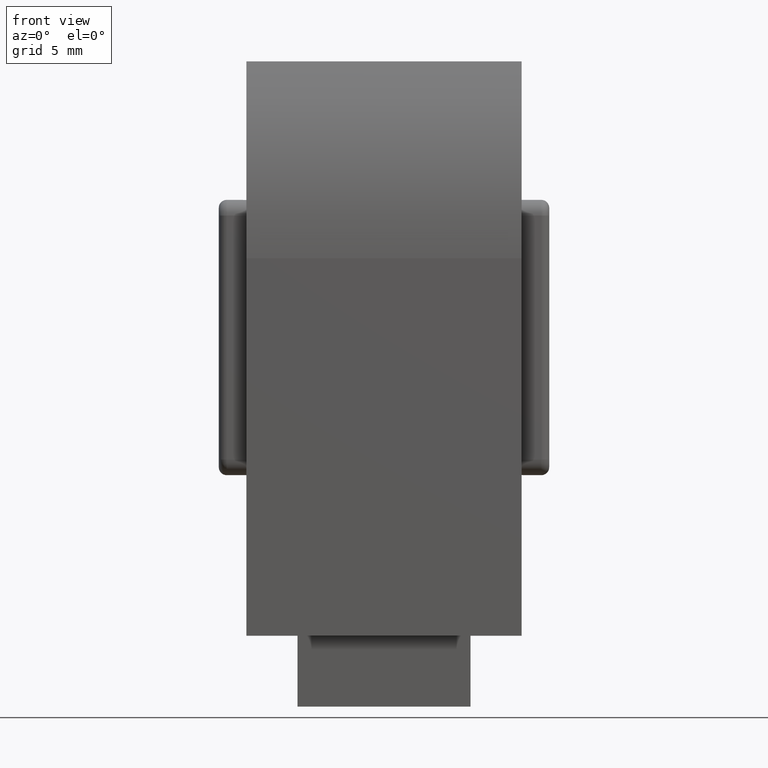
[diagram: clean part render]
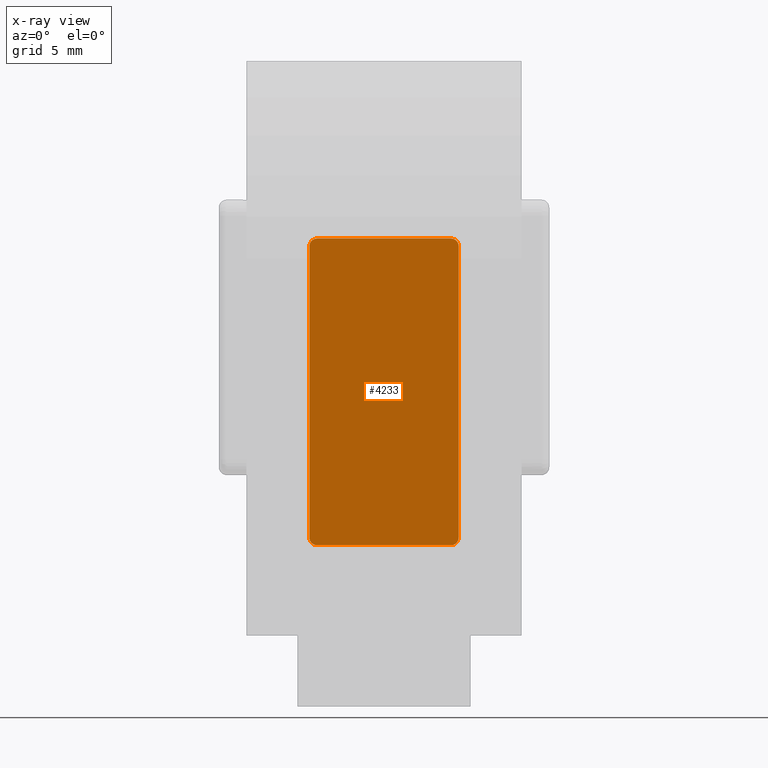
[diagram: x-ray — body ghosted, one internal face saturated and labeled with its STEP entity id]
A machine part, front view, then the same camera in x-ray: the body is ghosted and one INTERNAL B-rep face — a face not visible from any outside direction — is saturated and labeled: STEP entity #4233.
In plain terms, the highlighted planar face has unit normal (0, 1, 0).
Its self-contained STEP definition (entity closure, byte-faithful):
#492 = EDGE_CURVE ( 'NONE', #8392, #2623, #10461, .T. ) ;
#632 = CARTESIAN_POINT ( 'NONE',  ( 4.249999999999996400, -1.000000000000000000, -9.250000000000001800 ) ) ;
#671 = DIRECTION ( 'NONE',  ( 0.0000000000000000000, -0.0000000000000000000, 1.000000000000000000 ) ) ;
#781 = DIRECTION ( 'NONE',  ( 0.0000000000000000000, 0.0000000000000000000, -1.000000000000000000 ) ) ;
#791 = LINE ( 'NONE', #3850, #1812 ) ;
#896 = EDGE_CURVE ( 'NONE', #8370, #6532, #7158, .T. ) ;
#1049 = CARTESIAN_POINT ( 'NONE',  ( -4.249999999999994700, -1.000000000000000000, 9.749999999999998200 ) ) ;
#1142 = ORIENTED_EDGE ( 'NONE', *, *, #6099, .F. ) ;
#1208 = EDGE_CURVE ( 'NONE', #5836, #1214, #2405, .T. ) ;
#1214 = VERTEX_POINT ( 'NONE', #9729 ) ;
#1229 = ORIENTED_EDGE ( 'NONE', *, *, #9600, .F. ) ;
#1412 = DIRECTION ( 'NONE',  ( 0.0000000000000000000, 1.000000000000000000, 0.0000000000000000000 ) ) ;
#1420 = CARTESIAN_POINT ( 'NONE',  ( 4.749999999999997300, -1.000000000000000000, -9.249999999999998200 ) ) ;
#1812 = VECTOR ( 'NONE', #6168, 1000.000000000000000 ) ;
#1926 = CARTESIAN_POINT ( 'NONE',  ( 4.249999999999993800, -1.000000000000000000, -9.750000000000001800 ) ) ;
#2089 = AXIS2_PLACEMENT_3D ( 'NONE', #4807, #2336, #781 ) ;
#2287 = ORIENTED_EDGE ( 'NONE', *, *, #492, .F. ) ;
#2336 = DIRECTION ( 'NONE',  ( 0.0000000000000000000, 1.000000000000000000, -0.0000000000000000000 ) ) ;
#2405 = CIRCLE ( 'NONE', #2089, 0.5000000000000004400 ) ;
#2546 = CARTESIAN_POINT ( 'NONE',  ( -4.749999999999999100, -1.000000000000000000, 9.249999999999994700 ) ) ;
#2560 = ORIENTED_EDGE ( 'NONE', *, *, #10570, .F. ) ;
#2623 = VERTEX_POINT ( 'NONE', #1420 ) ;
#2780 = ORIENTED_EDGE ( 'NONE', *, *, #9199, .F. ) ;
#2858 = ORIENTED_EDGE ( 'NONE', *, *, #896, .F. ) ;
#3289 = CIRCLE ( 'NONE', #4516, 0.5000000000000004400 ) ;
#3451 = CARTESIAN_POINT ( 'NONE',  ( 4.749999999999999100, -1.000000000000000000, 9.249999999999994700 ) ) ;
#3456 = EDGE_LOOP ( 'NONE', ( #2780, #2287, #1142, #2858, #10506, #2560, #9347, #1229 ) ) ;
#3850 = CARTESIAN_POINT ( 'NONE',  ( -4.249999999999998200, -1.000000000000000000, -9.750000000000001800 ) ) ;
#4170 = DIRECTION ( 'NONE',  ( 0.0000000000000000000, 1.000000000000000000, 0.0000000000000000000 ) ) ;
#4209 = CARTESIAN_POINT ( 'NONE',  ( 4.249999999999996400, -1.000000000000000000, -9.250000000000001800 ) ) ;
#4230 = DIRECTION ( 'NONE',  ( 0.0000000000000000000, 0.0000000000000000000, 1.000000000000000000 ) ) ;
#4233 = ADVANCED_FACE ( 'NONE', ( #7552 ), #8103, .F. ) ;
#4367 = CARTESIAN_POINT ( 'NONE',  ( 4.249999999999994700, -1.000000000000000000, 9.749999999999998200 ) ) ;
#4464 = VECTOR ( 'NONE', #5830, 1000.000000000000000 ) ;
#4516 = AXIS2_PLACEMENT_3D ( 'NONE', #9325, #5245, #7586 ) ;
#4807 = CARTESIAN_POINT ( 'NONE',  ( -4.250000000000001800, -1.000000000000000000, -9.250000000000001800 ) ) ;
#4845 = VECTOR ( 'NONE', #7629, 1000.000000000000000 ) ;
#4877 = VECTOR ( 'NONE', #6298, 1000.000000000000000 ) ;
#5029 = CARTESIAN_POINT ( 'NONE',  ( 4.749999999999997300, -1.000000000000000000, -9.249999999999998200 ) ) ;
#5095 = AXIS2_PLACEMENT_3D ( 'NONE', #9949, #9154, #4230 ) ;
#5245 = DIRECTION ( 'NONE',  ( 0.0000000000000000000, 1.000000000000000000, 0.0000000000000000000 ) ) ;
#5830 = DIRECTION ( 'NONE',  ( -9.376883653928691100E-017, -0.0000000000000000000, -1.000000000000000000 ) ) ;
#5836 = VERTEX_POINT ( 'NONE', #10343 ) ;
#6099 = EDGE_CURVE ( 'NONE', #6532, #8392, #3289, .T. ) ;
#6168 = DIRECTION ( 'NONE',  ( -1.000000000000000000, -0.0000000000000000000, -0.0000000000000000000 ) ) ;
#6298 = DIRECTION ( 'NONE',  ( 1.875376730785738200E-016, 0.0000000000000000000, 1.000000000000000000 ) ) ;
#6532 = VERTEX_POINT ( 'NONE', #4367 ) ;
#6542 = CIRCLE ( 'NONE', #5095, 0.5000000000000004400 ) ;
#7070 = CIRCLE ( 'NONE', #8253, 0.5000000000000004400 ) ;
#7158 = LINE ( 'NONE', #1049, #4845 ) ;
#7336 = AXIS2_PLACEMENT_3D ( 'NONE', #632, #1412, #671 ) ;
#7484 = VERTEX_POINT ( 'NONE', #2546 ) ;
#7552 = FACE_OUTER_BOUND ( 'NONE', #3456, .T. ) ;
#7586 = DIRECTION ( 'NONE',  ( 0.0000000000000000000, 0.0000000000000000000, 1.000000000000000000 ) ) ;
#7629 = DIRECTION ( 'NONE',  ( 1.000000000000000000, 0.0000000000000000000, 0.0000000000000000000 ) ) ;
#8103 = PLANE ( 'NONE',  #7336 ) ;
#8253 = AXIS2_PLACEMENT_3D ( 'NONE', #4209, #4170, #10000 ) ;
#8363 = LINE ( 'NONE', #10524, #4877 ) ;
#8370 = VERTEX_POINT ( 'NONE', #9161 ) ;
#8392 = VERTEX_POINT ( 'NONE', #3451 ) ;
#8527 = VERTEX_POINT ( 'NONE', #1926 ) ;
#9154 = DIRECTION ( 'NONE',  ( 0.0000000000000000000, 1.000000000000000000, 0.0000000000000000000 ) ) ;
#9161 = CARTESIAN_POINT ( 'NONE',  ( -4.249999999999994700, -1.000000000000000000, 9.749999999999998200 ) ) ;
#9199 = EDGE_CURVE ( 'NONE', #2623, #8527, #7070, .T. ) ;
#9325 = CARTESIAN_POINT ( 'NONE',  ( 4.249999999999998200, -1.000000000000000000, 9.249999999999998200 ) ) ;
#9347 = ORIENTED_EDGE ( 'NONE', *, *, #1208, .F. ) ;
#9534 = EDGE_CURVE ( 'NONE', #7484, #8370, #6542, .T. ) ;
#9600 = EDGE_CURVE ( 'NONE', #8527, #5836, #791, .T. ) ;
#9729 = CARTESIAN_POINT ( 'NONE',  ( -4.750000000000002700, -1.000000000000000000, -9.249999999999998200 ) ) ;
#9949 = CARTESIAN_POINT ( 'NONE',  ( -4.249999999999998200, -1.000000000000000000, 9.249999999999998200 ) ) ;
#10000 = DIRECTION ( 'NONE',  ( 0.0000000000000000000, 0.0000000000000000000, 1.000000000000000000 ) ) ;
#10343 = CARTESIAN_POINT ( 'NONE',  ( -4.249999999999998200, -1.000000000000000000, -9.750000000000001800 ) ) ;
#10461 = LINE ( 'NONE', #5029, #4464 ) ;
#10506 = ORIENTED_EDGE ( 'NONE', *, *, #9534, .F. ) ;
#10524 = CARTESIAN_POINT ( 'NONE',  ( -4.750000000000002700, -1.000000000000000000, -9.249999999999998200 ) ) ;
#10570 = EDGE_CURVE ( 'NONE', #1214, #7484, #8363, .T. ) ;